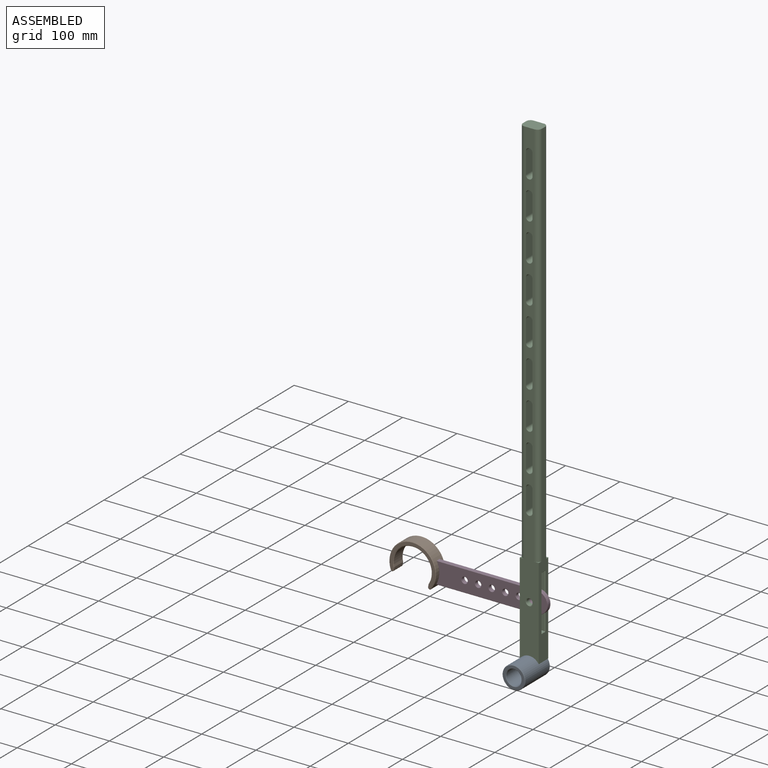
[diagram: assembled view]
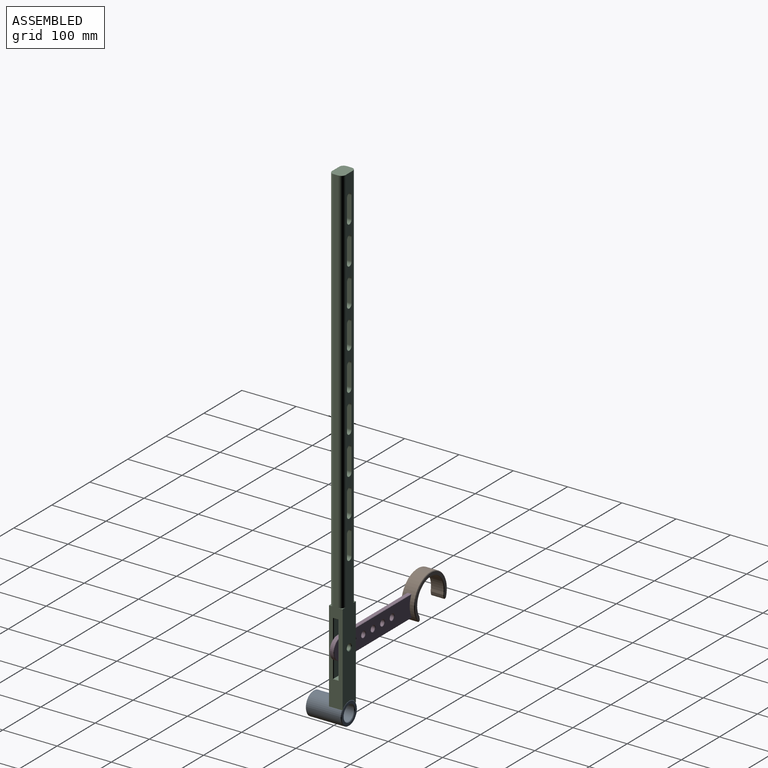
[diagram: assembled view, second angle]
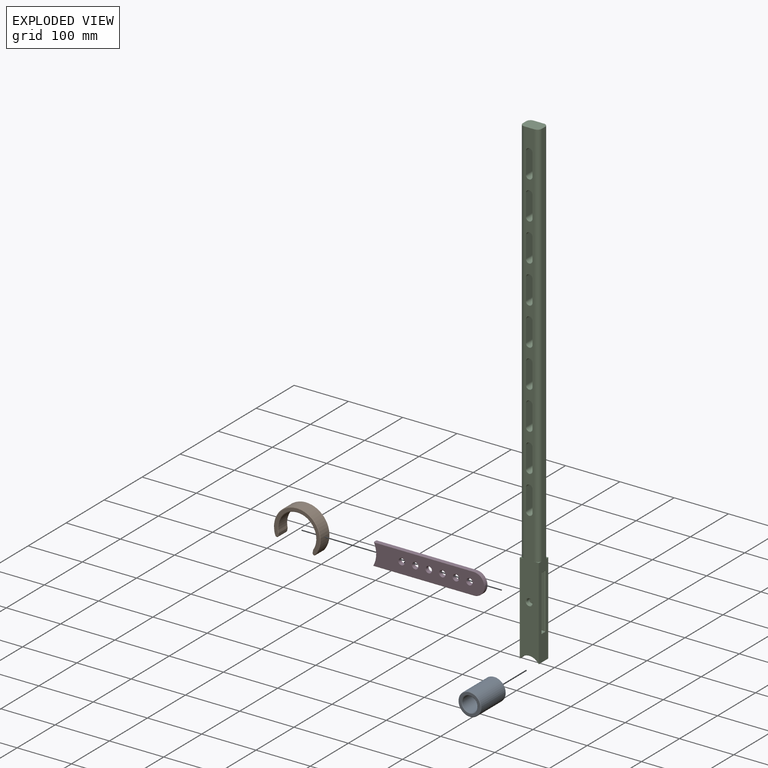
[diagram: exploded view]
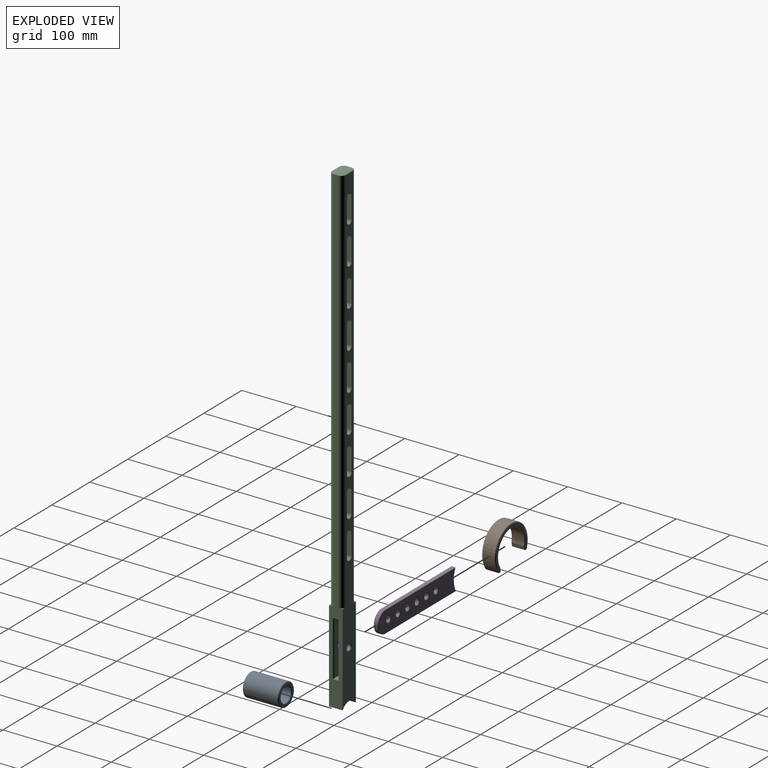
[diagram: exploded view, second angle]
ASSEMBLY  parts=4 mates=3
PART A: 8 faces, bbox 42x66x42 mm
  f0: cylinder r=14mm len=64mm, axis (0,1,0), area 5629.7mm2, adj f4,f7
  f1: cylinder r=21mm len=64mm, axis (0,1,0), area 8444.6mm2, adj f5,f6
  f2: plane 40x40mm, normal (0,-1,0), area 549.8mm2, adj f6,f7
  f3: plane 40x40mm, normal (0,1,0), area 549.8mm2, adj f4,f5
  f4: cone r=15mm half-angle=45deg, axis (0,1,0), area 128.8mm2, adj f0,f3
  f5: cone r=21mm half-angle=45deg, axis (0,-1,0), area 182.2mm2, adj f1,f3
  f6: cone r=20mm half-angle=45deg, axis (0,1,0), area 182.2mm2, adj f1,f2
  f7: cone r=14mm half-angle=45deg, axis (0,-1,0), area 128.8mm2, adj f0,f2
PART B: 20 faces, bbox 86x25x71.2 mm
  f0: cylinder r=35mm len=70mm, axis (0,1,0), area 3200.4mm2, adj f4,f5,f11,f17
  f1: cylinder r=43mm len=86mm, axis (0,1,0), area 4106.6mm2, adj f6,f7,f10,f16
  f2: plane 84x69.15mm, normal (0,-1,0), area 978.8mm2, adj f8,f9,f10,f11,f12,f13
  f3: plane 84x69.15mm, normal (0,1,0), area 978.8mm2, adj f14,f15,f16,f17,f18,f19
  f4: plane 23x5.11mm, normal (0.98,0,-0.17), area 119.3mm2, adj f0,f7,f9,f15
  f5: plane 23x5.11mm, normal (-0.98,0,0.17), area 119.3mm2, adj f0,f6,f13,f19
  f6: cylinder r=3mm len=23mm, axis (0,1,0), area 181.9mm2, adj f1,f5,f12,f18
  f7: cylinder r=3mm len=23mm, axis (0,1,0), area 181.9mm2, adj f1,f4,f8,f14
  f8: cone r=2mm half-angle=45deg, axis (0,1,0), area 9.3mm2, adj f2,f7,f9,f10
  f9: plane 5.11x1.89mm, normal (0.7,-0.71,-0.12), area 7.2mm2, adj f2,f4,f8,f11
  f10: cone r=42mm half-angle=45deg, axis (0,1,0), area 249.6mm2, adj f1,f2,f8,f12
  f11: cone r=35mm half-angle=45deg, axis (0,-1,0), area 199.3mm2, adj f0,f2,f9,f13
  f12: cone r=2mm half-angle=45deg, axis (0,1,0), area 9.3mm2, adj f2,f6,f10,f13
  f13: plane 5.28x1.85mm, normal (-0.7,-0.71,0.12), area 7.2mm2, adj f2,f5,f11,f12
  f14: cone r=2mm half-angle=45deg, axis (0,-1,0), area 9.3mm2, adj f3,f7,f15,f16
  f15: plane 5.11x1.89mm, normal (0.7,0.71,-0.12), area 7.2mm2, adj f3,f4,f14,f17
  f16: cone r=43mm half-angle=45deg, axis (0,-1,0), area 249.6mm2, adj f1,f3,f14,f18
  f17: cone r=36mm half-angle=45deg, axis (0,1,0), area 199.3mm2, adj f0,f3,f15,f19
  f18: cone r=2mm half-angle=45deg, axis (0,-1,0), area 9.3mm2, adj f3,f6,f16,f19
  f19: plane 5.28x1.85mm, normal (-0.7,0.71,0.12), area 7.2mm2, adj f3,f5,f17,f18
PART C: 66 faces, bbox 35x25x888.4 mm
  f0: plane 888.39x35mm, normal (0,-1,0), area 13871.8mm2, adj f2,f3,f5,f6,f13,f26,f27,f28
  f1: plane 888.39x35mm, normal (0,1,0), area 13871.8mm2, adj f2,f3,f5,f6,f12,f22,f23,f24
  f2: plane 888.39x25mm, normal (1,0,0), area 9618.8mm2, adj f0,f1,f5,f6,f18,f19,f20,f21
  f3: plane 888.39x25mm, normal (-1,0,0), area 9618.8mm2, adj f0,f1,f5,f6,f14,f15,f16,f17
  f4: cylinder r=5.5mm len=11mm, axis (0,-1,0), area 250.5mm2, adj f9,f13
  f5: plane 35x25mm, normal (0,0,1), area 820.1mm2, adj f0,f1,f2,f3,f22,f24,f26,f28
  f6: cylinder r=21mm len=35mm, axis (0,-1,0), area 1034.4mm2, adj f0,f1,f2,f3
  f7: cylinder r=5.5mm len=11mm, axis (0,-1,0), area 250.5mm2, adj f8,f12
  f8: plane 100x33mm, normal (0,-1,0), area 3205mm2, adj f7,f10,f11,f16,f21
  f9: plane 100x33mm, normal (0,1,0), area 3205mm2, adj f4,f10,f11,f15,f18
  f10: plane 33x8.5mm, normal (0,0,1), area 280.5mm2, adj f8,f9,f17,f19
  f11: plane 33x8.5mm, normal (0,0,-1), area 280.5mm2, adj f8,f9,f14,f20
  f12: cone r=6.5mm half-angle=45deg, axis (0,1,0), area 53.3mm2, adj f1,f7
  f13: cone r=5.5mm half-angle=45deg, axis (0,-1,0), area 53.3mm2, adj f0,f4
  f14: plane 10.5x1mm, normal (-0.71,0,-0.71), area 13.4mm2, adj f3,f11,f15,f16
  f15: plane 102x1mm, normal (-0.71,0.71,0), area 142.8mm2, adj f3,f9,f14,f17
  f16: plane 102x1mm, normal (-0.71,-0.71,0), area 142.8mm2, adj f3,f8,f14,f17
  f17: plane 10.5x1mm, normal (-0.71,0,0.71), area 13.4mm2, adj f3,f10,f15,f16
  f18: plane 102x1mm, normal (0.71,0.71,0), area 142.8mm2, adj f2,f9,f19,f20
  f19: plane 10.5x1mm, normal (0.71,0,0.71), area 13.4mm2, adj f2,f10,f18,f21
  f20: plane 10.5x1mm, normal (0.71,0,-0.71), area 13.4mm2, adj f2,f11,f18,f21
  f21: plane 102x1mm, normal (0.71,-0.71,0), area 142.8mm2, adj f2,f8,f19,f20
  f22: cylinder r=8mm len=720mm, axis (0,0,1), area 9047.8mm2, adj f1,f3,f5,f23
  f23: plane 8x8mm, normal (0,0,1), area 13.7mm2, adj f1,f3,f22
  f24: cylinder r=8mm len=720mm, axis (0,0,1), area 9047.8mm2, adj f1,f2,f5,f25
  f25: plane 8x8mm, normal (0,0,1), area 13.7mm2, adj f1,f2,f24
  f26: cylinder r=8mm len=720mm, axis (0,0,1), area 9047.8mm2, adj f0,f3,f5,f27
  f27: plane 8x8mm, normal (0,0,1), area 13.7mm2, adj f0,f3,f26
  f28: cylinder r=8mm len=720mm, axis (0,0,1), area 9047.8mm2, adj f0,f2,f5,f29
  f29: plane 8x8mm, normal (0,0,1), area 13.7mm2, adj f0,f2,f28
  f30: cylinder r=6mm len=25mm, axis (0,1,0), area 471.2mm2, adj f0,f1,f31,f33
  f31: plane 40x25mm, normal (-1,0,0), area 1000mm2, adj f0,f1,f30,f32
  f32: cylinder r=6mm len=25mm, axis (0,1,0), area 471.2mm2, adj f0,f1,f31,f33
  f33: plane 40x25mm, normal (1,0,0), area 1000mm2, adj f0,f1,f30,f32
  f34: cylinder r=6mm len=25mm, axis (0,1,0), area 471.2mm2, adj f0,f1,f35,f37
  f35: plane 40x25mm, normal (-1,0,0), area 1000mm2, adj f0,f1,f34,f36
  f36: cylinder r=6mm len=25mm, axis (0,1,0), area 471.2mm2, adj f0,f1,f35,f37
  f37: plane 40x25mm, normal (1,0,0), area 1000mm2, adj f0,f1,f34,f36
  f38: cylinder r=6mm len=25mm, axis (0,1,0), area 471.2mm2, adj f0,f1,f39,f41
  f39: plane 40x25mm, normal (-1,0,0), area 1000mm2, adj f0,f1,f38,f40
  f40: cylinder r=6mm len=25mm, axis (0,1,0), area 471.2mm2, adj f0,f1,f39,f41
  f41: plane 40x25mm, normal (1,0,0), area 1000mm2, adj f0,f1,f38,f40
  f42: cylinder r=6mm len=25mm, axis (0,1,0), area 471.2mm2, adj f0,f1,f43,f45
  f43: plane 40x25mm, normal (-1,0,0), area 1000mm2, adj f0,f1,f42,f44
  f44: cylinder r=6mm len=25mm, axis (0,1,0), area 471.2mm2, adj f0,f1,f43,f45
  f45: plane 40x25mm, normal (1,0,0), area 1000mm2, adj f0,f1,f42,f44
  f46: cylinder r=6mm len=25mm, axis (0,1,0), area 471.2mm2, adj f0,f1,f47,f49
  f47: plane 40x25mm, normal (-1,0,0), area 1000mm2, adj f0,f1,f46,f48
  f48: cylinder r=6mm len=25mm, axis (0,1,0), area 471.2mm2, adj f0,f1,f47,f49
  f49: plane 40x25mm, normal (1,0,0), area 1000mm2, adj f0,f1,f46,f48
  f50: cylinder r=6mm len=25mm, axis (0,1,0), area 471.2mm2, adj f0,f1,f51,f53
  f51: plane 40x25mm, normal (-1,0,0), area 1000mm2, adj f0,f1,f50,f52
  f52: cylinder r=6mm len=25mm, axis (0,1,0), area 471.2mm2, adj f0,f1,f51,f53
  f53: plane 40x25mm, normal (1,0,0), area 1000mm2, adj f0,f1,f50,f52
  f54: cylinder r=6mm len=25mm, axis (0,1,0), area 471.2mm2, adj f0,f1,f55,f57
  f55: plane 40x25mm, normal (-1,0,0), area 1000mm2, adj f0,f1,f54,f56
  f56: cylinder r=6mm len=25mm, axis (0,1,0), area 471.2mm2, adj f0,f1,f55,f57
  f57: plane 40x25mm, normal (1,0,0), area 1000mm2, adj f0,f1,f54,f56
  f58: cylinder r=6mm len=25mm, axis (0,1,0), area 471.2mm2, adj f0,f1,f59,f61
  f59: plane 40x25mm, normal (-1,0,0), area 1000mm2, adj f0,f1,f58,f60
  f60: cylinder r=6mm len=25mm, axis (0,1,0), area 471.2mm2, adj f0,f1,f59,f61
  f61: plane 40x25mm, normal (1,0,0), area 1000mm2, adj f0,f1,f58,f60
  f62: plane 40x25mm, normal (1,0,0), area 1000mm2, adj f0,f1,f63,f65
  f63: cylinder r=6mm len=25mm, axis (0,1,0), area 471.2mm2, adj f0,f1,f62,f64
  f64: plane 40x25mm, normal (-1,0,0), area 1000mm2, adj f0,f1,f63,f65
  f65: cylinder r=6mm len=25mm, axis (0,1,0), area 471.2mm2, adj f0,f1,f62,f64
PART D: 32 faces, bbox 205.5x8x40.5 mm
  f0: cylinder r=43mm len=40mm, axis (0,1,0), area 291.3mm2, adj f1,f8,f12,f22
  f1: plane 185.46x7mm, normal (0,0,-1), area 1298.2mm2, adj f0,f2,f13,f23
  f2: cylinder r=20mm len=40mm, axis (0,1,0), area 439.8mm2, adj f1,f8,f15,f25
  f3: cylinder r=5.5mm len=11mm, axis (0,1,0), area 241.9mm2, adj f17,f27
  f4: cylinder r=5.5mm len=11mm, axis (0,1,0), area 241.9mm2, adj f18,f28
  f5: cylinder r=5.5mm len=11mm, axis (0,1,0), area 241.9mm2, adj f19,f29
  f6: cylinder r=5.5mm len=11mm, axis (0,1,0), area 241.9mm2, adj f20,f30
  f7: cylinder r=5.5mm len=11mm, axis (0,1,0), area 241.9mm2, adj f21,f31
  f8: plane 184.44x7mm, normal (0,0,1), area 1291.1mm2, adj f0,f2,f14,f24
  f9: cylinder r=5.5mm len=11mm, axis (0,1,0), area 241.9mm2, adj f16,f26
  f10: plane 204.12x39mm, normal (0,-1,0), area 6978.4mm2, adj f12,f13,f14,f15,f16,f17,f18,f19
  f11: plane 204.12x39mm, normal (0,1,0), area 6978.4mm2, adj f22,f23,f24,f25,f26,f27,f28,f29
  f12: cone r=43mm half-angle=45deg, axis (0,-1,0), area 29mm2, adj f0,f10,f13,f14
  f13: plane 185.47x0.5mm, normal (0,-0.71,-0.71), area 130.8mm2, adj f1,f10,f12,f15
  f14: plane 184.44x0.5mm, normal (0,-0.71,0.71), area 130.1mm2, adj f8,f10,f12,f15
  f15: cone r=19.5mm half-angle=45deg, axis (0,1,0), area 43.9mm2, adj f2,f10,f13,f14
  f16: cone r=5.5mm half-angle=45deg, axis (0,-1,0), area 25.5mm2, adj f9,f10
  f17: cone r=5.5mm half-angle=45deg, axis (0,-1,0), area 25.5mm2, adj f3,f10
  f18: cone r=5.5mm half-angle=45deg, axis (0,-1,0), area 25.5mm2, adj f4,f10
  f19: cone r=5.5mm half-angle=45deg, axis (0,-1,0), area 25.5mm2, adj f5,f10
  f20: cone r=5.5mm half-angle=45deg, axis (0,-1,0), area 25.5mm2, adj f6,f10
  f21: cone r=5.5mm half-angle=45deg, axis (0,-1,0), area 25.5mm2, adj f7,f10
  f22: cone r=43.5mm half-angle=45deg, axis (0,1,0), area 29mm2, adj f0,f11,f23,f24
  f23: plane 185.47x0.5mm, normal (0,0.71,-0.71), area 130.8mm2, adj f1,f11,f22,f25
  f24: plane 184.44x0.5mm, normal (0,0.71,0.71), area 130.1mm2, adj f8,f11,f22,f25
  f25: cone r=20mm half-angle=45deg, axis (0,-1,0), area 43.9mm2, adj f2,f11,f23,f24
  f26: cone r=6mm half-angle=45deg, axis (0,1,0), area 25.5mm2, adj f9,f11
  f27: cone r=6mm half-angle=45deg, axis (0,1,0), area 25.5mm2, adj f3,f11
  f28: cone r=6mm half-angle=45deg, axis (0,1,0), area 25.5mm2, adj f4,f11
  f29: cone r=6mm half-angle=45deg, axis (0,1,0), area 25.5mm2, adj f5,f11
  f30: cone r=6mm half-angle=45deg, axis (0,1,0), area 25.5mm2, adj f6,f11
  f31: cone r=6mm half-angle=45deg, axis (0,1,0), area 25.5mm2, adj f7,f11
PLACE A t=(214.13,38.11,-109.34)mm
PLACE B t=(-0.87,25.36,0.66)mm
PLACE C t=(231.63,25.61,-97.73)mm
PLACE D t=(-0.87,25.36,0.66)mm
MATE fastened C.f4 <-> D.f9  axis (0,1,0) through (214.13,21.36,0.66)mm
MATE fastened D.f0 <-> B.f0  axis (0,1,0) through (-0.87,25.36,0.66)mm
MATE fastened A.f1 <-> C.f6  axis (0,1,0) through (214.13,38.11,-109.34)mm
